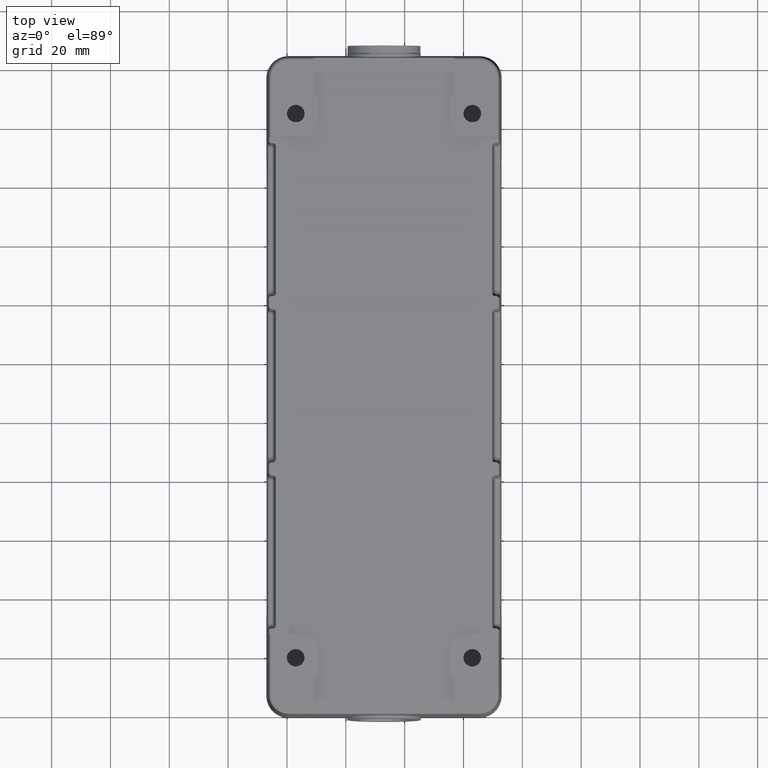
[diagram: clean part render]
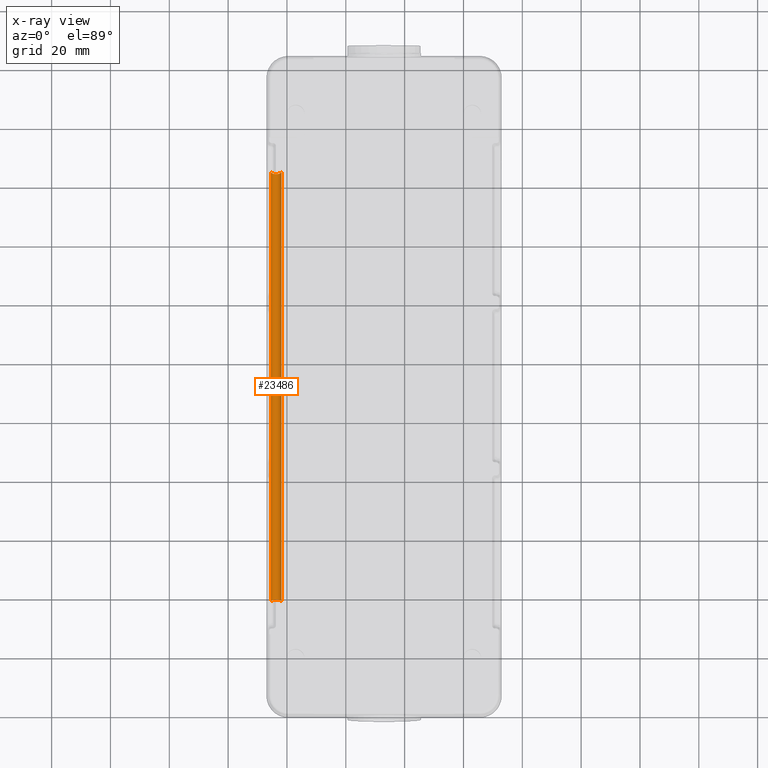
[diagram: x-ray — body ghosted, one internal face saturated and labeled with its STEP entity id]
A machine part, top view, then the same camera in x-ray: the body is ghosted and one INTERNAL B-rep face — a face not visible from any outside direction — is saturated and labeled: STEP entity #23486.
In plain terms, the highlighted cylindrical surface (edge-blend (fillet) strip) has radius 1.75 mm, axis along (0, 1, -0).
Its self-contained STEP definition (entity closure, byte-faithful):
#23418=CARTESIAN_POINT('',(63.190582961587431,-173.165852613615750,2.249999999999994));
#23419=VERTEX_POINT('',#23418);
#23420=CARTESIAN_POINT('',(66.690582961587324,-173.165852613615780,2.249999999999993));
#23421=VERTEX_POINT('',#23420);
#23422=CARTESIAN_POINT('',(64.940582961587438,-173.165852613615810,2.249999999999997));
#23423=DIRECTION('',(-1.899866E-014,0.923879532511286,-0.382683432365093));
#23424=DIRECTION('',(1.708688E-014,0.382683432365093,0.923879532511286));
#23425=AXIS2_PLACEMENT_3D('',#23422,#23423,#23424);
#23426=ELLIPSE('',#23425,1.894186350511684,1.749999999999998);
#23427=EDGE_CURVE('',#23419,#23421,#23426,.T.);
#23455=CARTESIAN_POINT('',(64.940582961587353,-174.097833128955240,2.249999999999993));
#23456=DIRECTION('',(-1.536309E-014,1.0,-1.500301E-017));
#23457=DIRECTION('',(-1.0,0.0,0.0));
#23458=AXIS2_PLACEMENT_3D('',#23455,#23456,#23457);
#23459=CYLINDRICAL_SURFACE('',#23458,1.749999999999998);
#23460=ORIENTED_EDGE('',*,*,#23427,.F.);
#23461=CARTESIAN_POINT('',(63.190582961585093,-27.029813644294691,2.249999999999993));
#23462=VERTEX_POINT('',#23461);
#23463=CARTESIAN_POINT('',(63.190582961587431,-173.165852613615750,2.249999999999994));
#23464=DIRECTION('',(0.0,1.0,0.0));
#23465=VECTOR('',#23464,146.136038969321080);
#23466=LINE('',#23463,#23465);
#23467=EDGE_CURVE('',#23419,#23462,#23466,.T.);
#23468=ORIENTED_EDGE('',*,*,#23467,.T.);
#23469=CARTESIAN_POINT('',(66.690582961585079,-27.029813644294638,2.249999999999989));
#23470=VERTEX_POINT('',#23469);
#23471=CARTESIAN_POINT('',(64.940582961585093,-27.029813644294677,2.249999999999993));
#23472=DIRECTION('',(1.364205E-014,-0.923879532511288,-0.382683432365086));
#23473=DIRECTION('',(5.879199E-015,-0.382683432365086,0.923879532511288));
#23474=AXIS2_PLACEMENT_3D('',#23471,#23472,#23473);
#23475=ELLIPSE('',#23474,1.894186350511691,1.749999999999998);
#23476=EDGE_CURVE('',#23470,#23462,#23475,.T.);
#23477=ORIENTED_EDGE('',*,*,#23476,.F.);
#23478=CARTESIAN_POINT('',(66.690582961587324,-173.165852613615780,2.249999999999993));
#23479=DIRECTION('',(0.0,1.0,0.0));
#23480=VECTOR('',#23479,146.136038969321130);
#23481=LINE('',#23478,#23480);
#23482=EDGE_CURVE('',#23421,#23470,#23481,.T.);
#23483=ORIENTED_EDGE('',*,*,#23482,.F.);
#23484=EDGE_LOOP('',(#23460,#23468,#23477,#23483));
#23485=FACE_OUTER_BOUND('',#23484,.T.);
#23486=ADVANCED_FACE('',(#23485),#23459,.F.);